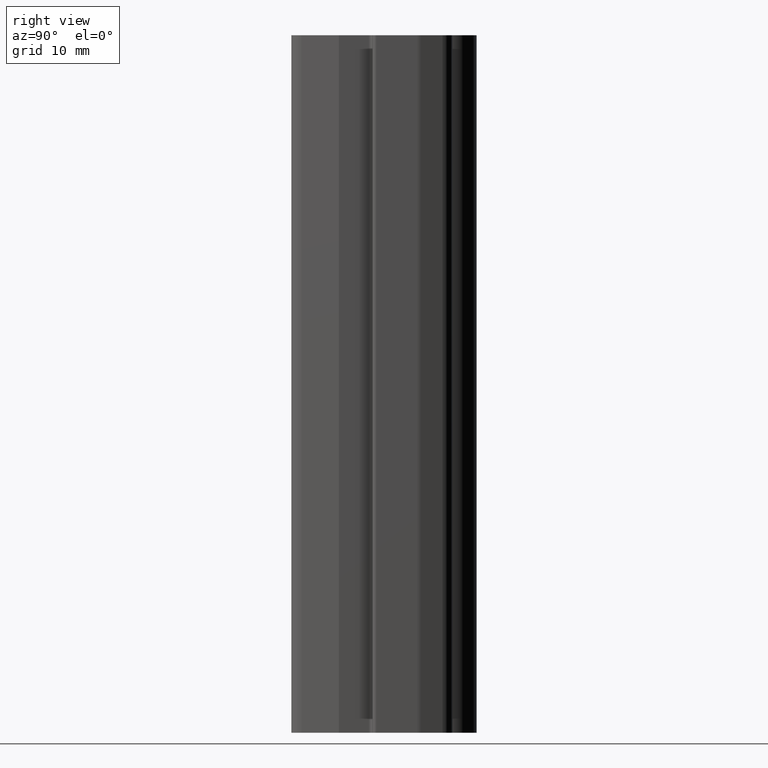
[diagram: clean part render]
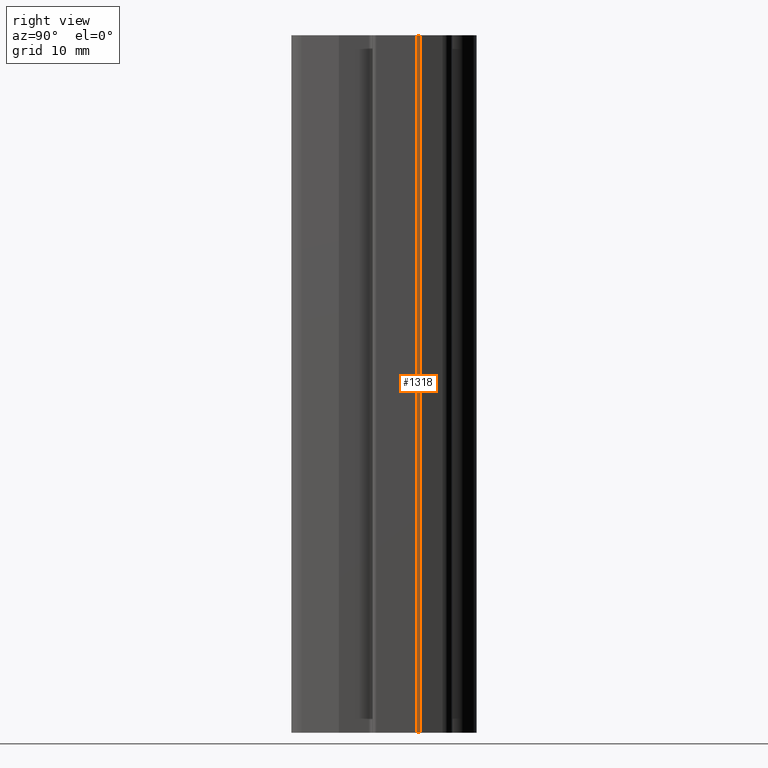
[diagram: same view with one face highlighted and labeled with its STEP entity id]
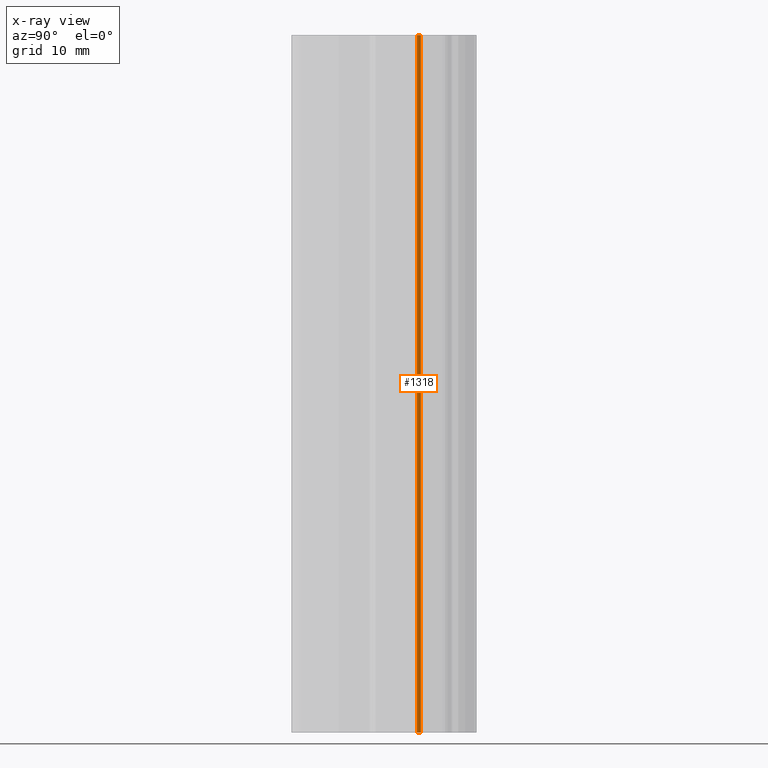
[diagram: x-ray of the same camera — body ghosted, the highlighted face saturated]
A machine part, right view. The second image highlights one B-rep face of the part: STEP entity #1318.
The next image is the same camera in x-ray: the body ghosted, the highlighted face saturated — about 0% of this face is hidden behind the body in this view.
In plain terms, the highlighted cylindrical surface (edge-blend (fillet) strip) has radius 2 mm, axis along (0, 0, 1).
Its self-contained STEP definition (entity closure, byte-faithful):
#30=CYLINDRICAL_SURFACE('',#1465,2.);
#79=FACE_OUTER_BOUND('',#147,.T.);
#147=EDGE_LOOP('',(#965,#966,#967,#968));
#244=LINE('',#2166,#354);
#245=LINE('',#2170,#355);
#354=VECTOR('',#1747,10.);
#355=VECTOR('',#1752,10.);
#428=CIRCLE('',#1404,2.);
#467=CIRCLE('',#1466,2.);
#517=VERTEX_POINT('',#1996);
#518=VERTEX_POINT('',#1998);
#579=VERTEX_POINT('',#2164);
#580=VERTEX_POINT('',#2168);
#645=EDGE_CURVE('',#517,#518,#428,.T.);
#729=EDGE_CURVE('',#579,#517,#244,.T.);
#730=EDGE_CURVE('',#580,#579,#467,.T.);
#731=EDGE_CURVE('',#580,#518,#245,.T.);
#965=ORIENTED_EDGE('',*,*,#729,.F.);
#966=ORIENTED_EDGE('',*,*,#730,.F.);
#967=ORIENTED_EDGE('',*,*,#731,.T.);
#968=ORIENTED_EDGE('',*,*,#645,.F.);
#1318=ADVANCED_FACE('',(#79),#30,.T.);
#1404=AXIS2_PLACEMENT_3D('',#1999,#1580,#1581);
#1465=AXIS2_PLACEMENT_3D('',#2167,#1748,#1749);
#1466=AXIS2_PLACEMENT_3D('',#2169,#1750,#1751);
#1580=DIRECTION('center_axis',(0.,0.,-1.));
#1581=DIRECTION('ref_axis',(-1.,0.,0.));
#1747=DIRECTION('',(0.,0.,-1.));
#1748=DIRECTION('center_axis',(0.,0.,1.));
#1749=DIRECTION('ref_axis',(-1.,0.,0.));
#1750=DIRECTION('center_axis',(0.,0.,1.));
#1751=DIRECTION('ref_axis',(-1.,0.,0.));
#1752=DIRECTION('',(0.,0.,-1.));
#1996=CARTESIAN_POINT('',(8.42557984211973,-3.04435214142144,-50.));
#1998=CARTESIAN_POINT('',(8.49999999999993,-3.58485401155868,-50.));
#1999=CARTESIAN_POINT('Origin',(6.49999999999991,-3.58485401155868,-50.));
#2164=CARTESIAN_POINT('',(8.42557984211973,-3.04435214142144,50.));
#2166=CARTESIAN_POINT('',(8.42557984211973,-3.04435214142144,0.));
#2167=CARTESIAN_POINT('Origin',(6.49999999999991,-3.58485401155868,0.));
#2168=CARTESIAN_POINT('',(8.49999999999993,-3.58485401155868,50.));
#2169=CARTESIAN_POINT('Origin',(6.49999999999991,-3.58485401155868,50.));
#2170=CARTESIAN_POINT('',(8.49999999999993,-3.58485401155868,0.));